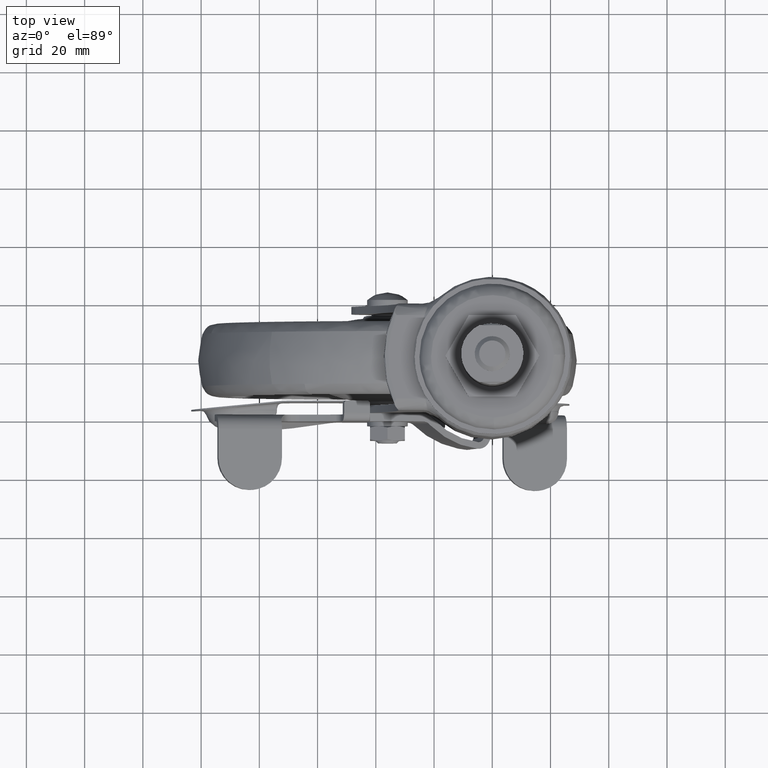
[diagram: clean part render]
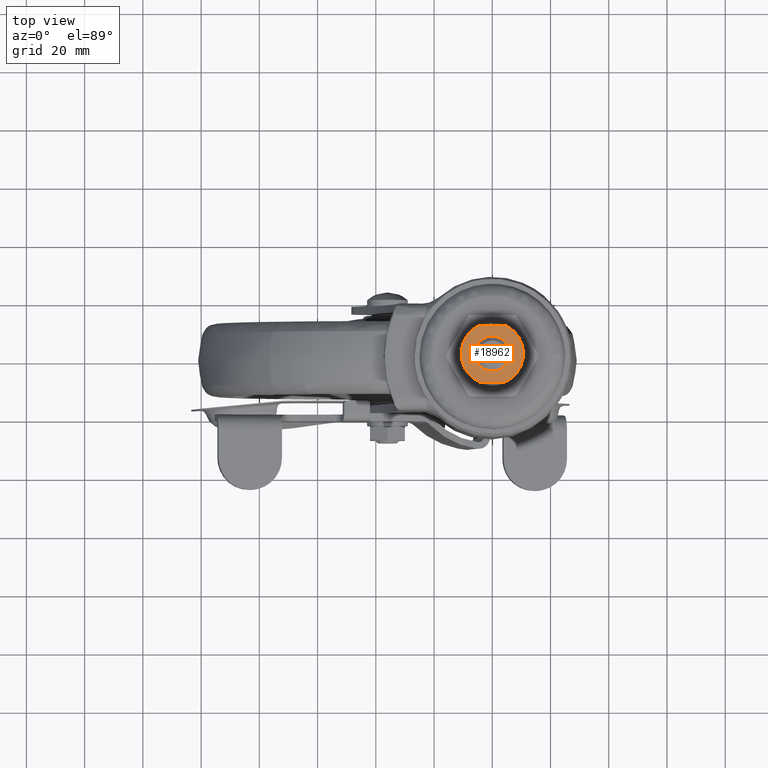
[diagram: same view with one face highlighted and labeled with its STEP entity id]
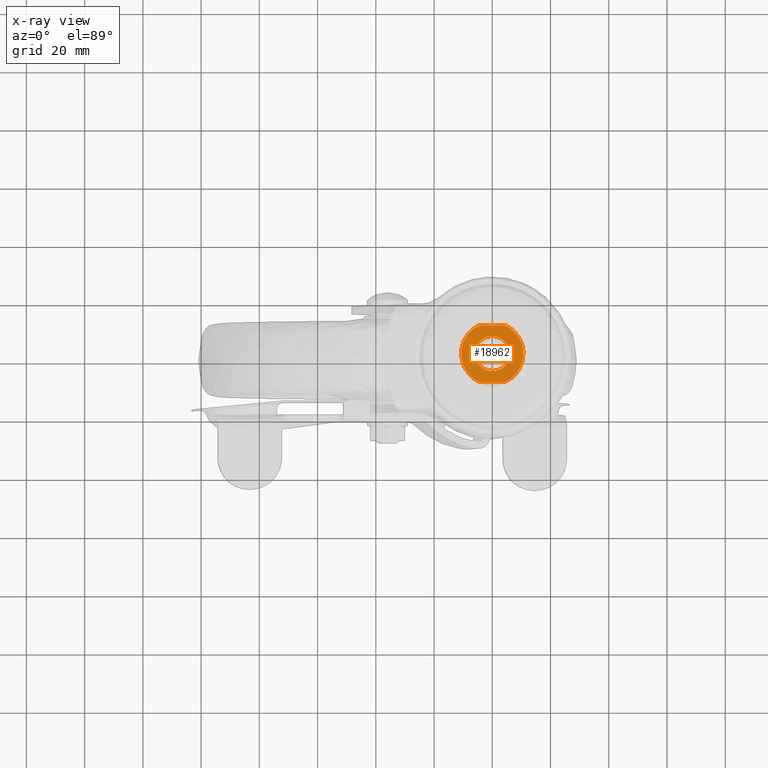
[diagram: x-ray of the same camera — body ghosted, the highlighted face saturated]
A machine part, top view. The second image highlights one B-rep face of the part: STEP entity #18962.
The next image is the same camera in x-ray: the body ghosted, the highlighted face saturated — about 0% of this face is hidden behind the body in this view.
In plain terms, the highlighted face is a freeform B-spline surface patch.
Its self-contained STEP definition (entity closure, byte-faithful):
#17260=CARTESIAN_POINT('',(0.052359554160291,5.999810536892638,48.099999999999987));
#17261=VERTEX_POINT('',#17260);
#17267=CARTESIAN_POINT('',(-6.000038999999900,0.0,48.099999999999987));
#17268=VERTEX_POINT('',#17267);
#17269=CARTESIAN_POINT('',(0.052359554160291,5.999810536892639,48.099999999999994));
#17270=CARTESIAN_POINT('',(0.026180275930102,6.000038999999901,48.099999999999994));
#17271=CARTESIAN_POINT('',(0.0,6.000038999999900,48.099999999999987));
#17272=CARTESIAN_POINT('',(-6.000038999999900,6.000038999999900,48.099999999999994));
#17273=CARTESIAN_POINT('',(-6.000038999999900,0.0,48.099999999999987));
#17281=(BOUNDED_CURVE()B_SPLINE_CURVE(2,(#17269,#17270,#17271,#17272,#17273),.UNSPECIFIED.,.F.,.U.)B_SPLINE_CURVE_WITH_KNOTS((3,2,3),(0.248460105615975,0.250000000000000,0.500000000000000),.UNSPECIFIED.)CURVE()GEOMETRIC_REPRESENTATION_ITEM()RATIONAL_B_SPLINE_CURVE((0.996414027986919,0.998195901508921,1.0,0.707106781186547,1.0))REPRESENTATION_ITEM(''));
#17282=EDGE_CURVE('',#17261,#17268,#17281,.T.);
#17284=CARTESIAN_POINT('',(6.000038999999900,0.0,48.099999999999987));
#17285=VERTEX_POINT('',#17284);
#17286=CARTESIAN_POINT('',(-6.000038999999900,0.0,48.099999999999987));
#17287=CARTESIAN_POINT('',(-6.000038999999900,-6.000038999999900,48.099999999999994));
#17288=CARTESIAN_POINT('',(0.0,-6.000038999999900,48.099999999999987));
#17289=CARTESIAN_POINT('',(6.000038999999900,-6.000038999999900,48.099999999999994));
#17290=CARTESIAN_POINT('',(6.000038999999900,0.0,48.099999999999987));
#17298=(BOUNDED_CURVE()B_SPLINE_CURVE(2,(#17286,#17287,#17288,#17289,#17290),.UNSPECIFIED.,.F.,.U.)B_SPLINE_CURVE_WITH_KNOTS((3,2,3),(0.500000000000000,0.750000000000000,1.0),.UNSPECIFIED.)CURVE()GEOMETRIC_REPRESENTATION_ITEM()RATIONAL_B_SPLINE_CURVE((1.0,0.707106781186547,1.0,0.707106781186547,1.0))REPRESENTATION_ITEM(''));
#17299=EDGE_CURVE('',#17268,#17285,#17298,.T.);
#17301=CARTESIAN_POINT('',(5.845346913461322,1.353657069869615,48.099999999999987));
#17302=VERTEX_POINT('',#17301);
#17303=CARTESIAN_POINT('',(6.000038999999900,0.0,48.099999999999987));
#17304=CARTESIAN_POINT('',(6.000038999999900,0.685667421418017,48.099999999999987));
#17305=CARTESIAN_POINT('',(5.845346913461322,1.353657069869615,48.099999999999994));
#17313=(BOUNDED_CURVE()B_SPLINE_CURVE(2,(#17303,#17304,#17305),.UNSPECIFIED.,.F.,.U.)B_SPLINE_CURVE_WITH_KNOTS((3,3),(0.0,0.038577028243880),.UNSPECIFIED.)CURVE()GEOMETRIC_REPRESENTATION_ITEM()RATIONAL_B_SPLINE_CURVE((1.0,0.954804200101570,0.923556557396632))REPRESENTATION_ITEM(''));
#17314=EDGE_CURVE('',#17285,#17302,#17313,.T.);
#17352=CARTESIAN_POINT('',(5.845346913461323,1.353657069869615,48.099999999999994));
#17353=CARTESIAN_POINT('',(4.778949573331841,5.958562209378239,48.100000000000001));
#17354=CARTESIAN_POINT('',(0.052359554160291,5.999810536892639,48.099999999999994));
#17362=(BOUNDED_CURVE()B_SPLINE_CURVE(2,(#17352,#17353,#17354),.UNSPECIFIED.,.F.,.U.)B_SPLINE_CURVE_WITH_KNOTS((3,3),(0.038577028243880,0.248460105615975),.UNSPECIFIED.)CURVE()GEOMETRIC_REPRESENTATION_ITEM()RATIONAL_B_SPLINE_CURVE((0.923556557396632,0.753549905508495,0.996414027986919))REPRESENTATION_ITEM(''));
#17363=EDGE_CURVE('',#17302,#17261,#17362,.T.);
#18768=CARTESIAN_POINT('',(4.407663732761410,-9.750000021482039,48.099999999999987));
#18769=VERTEX_POINT('',#18768);
#18770=CARTESIAN_POINT('',(4.407664000000001,9.750000000000000,48.099999999999987));
#18771=VERTEX_POINT('',#18770);
#18772=CARTESIAN_POINT('',(4.407663732761407,-9.750000021482039,48.099999999999987));
#18773=CARTESIAN_POINT('',(10.699999918567183,-6.905435720003956,48.099999999999987));
#18774=CARTESIAN_POINT('',(10.699999999999999,-0.000000126180469,48.099999999999987));
#18775=CARTESIAN_POINT('',(10.700000081432814,6.905435467643023,48.099999999999987));
#18776=CARTESIAN_POINT('',(4.407664000000001,9.750000000000000,48.099999999999987));
#18784=(BOUNDED_CURVE()B_SPLINE_CURVE(2,(#18772,#18773,#18774,#18775,#18776),.UNSPECIFIED.,.F.,.U.)B_SPLINE_CURVE_WITH_KNOTS((3,2,3),(0.0,0.500000000000000,1.0),.UNSPECIFIED.)CURVE()GEOMETRIC_REPRESENTATION_ITEM()RATIONAL_B_SPLINE_CURVE((1.0,0.840217591080806,1.0,0.840217591080806,1.0))REPRESENTATION_ITEM(''));
#18785=EDGE_CURVE('',#18769,#18771,#18784,.T.);
#18824=CARTESIAN_POINT('',(-4.407663732761410,9.750000021482039,48.099999999999987));
#18825=VERTEX_POINT('',#18824);
#18826=CARTESIAN_POINT('',(-4.407663732761410,9.750000021482039,48.099999999999987));
#18827=CARTESIAN_POINT('',(4.407664000000001,9.750000000000000,48.099999999999987));
#18828=QUASI_UNIFORM_CURVE('',1,(#18826,#18827),.UNSPECIFIED.,.F.,.U.);
#18829=EDGE_CURVE('',#18825,#18771,#18828,.T.);
#18865=CARTESIAN_POINT('',(-4.407663732761430,-9.750000021482030,48.099999999999987));
#18866=VERTEX_POINT('',#18865);
#18867=CARTESIAN_POINT('',(-4.407663732761408,9.750000021482038,48.099999999999987));
#18868=CARTESIAN_POINT('',(-10.699999999999999,6.905435683190779,48.100000000000009));
#18869=CARTESIAN_POINT('',(-10.699999999999999,0.0,48.099999999999987));
#18870=CARTESIAN_POINT('',(-10.699999999999999,-6.905435683190762,48.100000000000009));
#18871=CARTESIAN_POINT('',(-4.407663732761428,-9.750000021482030,48.099999999999987));
#18879=(BOUNDED_CURVE()B_SPLINE_CURVE(2,(#18867,#18868,#18869,#18870,#18871),.UNSPECIFIED.,.F.,.U.)B_SPLINE_CURVE_WITH_KNOTS((3,2,3),(0.0,0.500000000000000,1.0),.UNSPECIFIED.)CURVE()GEOMETRIC_REPRESENTATION_ITEM()RATIONAL_B_SPLINE_CURVE((1.0,0.840217587883550,1.0,0.840217587883550,1.0))REPRESENTATION_ITEM(''));
#18880=EDGE_CURVE('',#18825,#18866,#18879,.T.);
#18913=CARTESIAN_POINT('',(4.407663732761410,-9.750000021482039,48.099999999999987));
#18914=CARTESIAN_POINT('',(-4.407663732761430,-9.750000021482030,48.099999999999987));
#18915=QUASI_UNIFORM_CURVE('',1,(#18913,#18914),.UNSPECIFIED.,.F.,.U.);
#18916=EDGE_CURVE('',#18769,#18866,#18915,.T.);
#18945=CARTESIAN_POINT('',(-11.768929757634760,-10.724024985833310,48.099999999999987));
#18946=CARTESIAN_POINT('',(11.768930522958390,-10.724024985833310,48.099999999999987));
#18947=CARTESIAN_POINT('',(-11.768929757634760,10.724025508864070,48.099999999999987));
#18948=CARTESIAN_POINT('',(11.768930522958390,10.724025508864070,48.099999999999987));
#18949=B_SPLINE_SURFACE_WITH_KNOTS('',1,1,((#18945,#18947),(#18946,#18948)),.UNSPECIFIED.,.F.,.F.,.U.,(2,2),(2,2),(0.0,23.537860280593151),(0.0,21.448050494697370),.UNSPECIFIED.);
#18950=ORIENTED_EDGE('',*,*,#18916,.F.);
#18951=ORIENTED_EDGE('',*,*,#18785,.T.);
#18952=ORIENTED_EDGE('',*,*,#18829,.F.);
#18953=ORIENTED_EDGE('',*,*,#18880,.T.);
#18954=EDGE_LOOP('',(#18950,#18951,#18952,#18953));
#18955=FACE_OUTER_BOUND('',#18954,.T.);
#18956=ORIENTED_EDGE('',*,*,#17299,.F.);
#18957=ORIENTED_EDGE('',*,*,#17282,.F.);
#18958=ORIENTED_EDGE('',*,*,#17363,.F.);
#18959=ORIENTED_EDGE('',*,*,#17314,.F.);
#18960=EDGE_LOOP('',(#18956,#18957,#18958,#18959));
#18961=FACE_BOUND('',#18960,.T.);
#18962=ADVANCED_FACE('',(#18955,#18961),#18949,.T.);